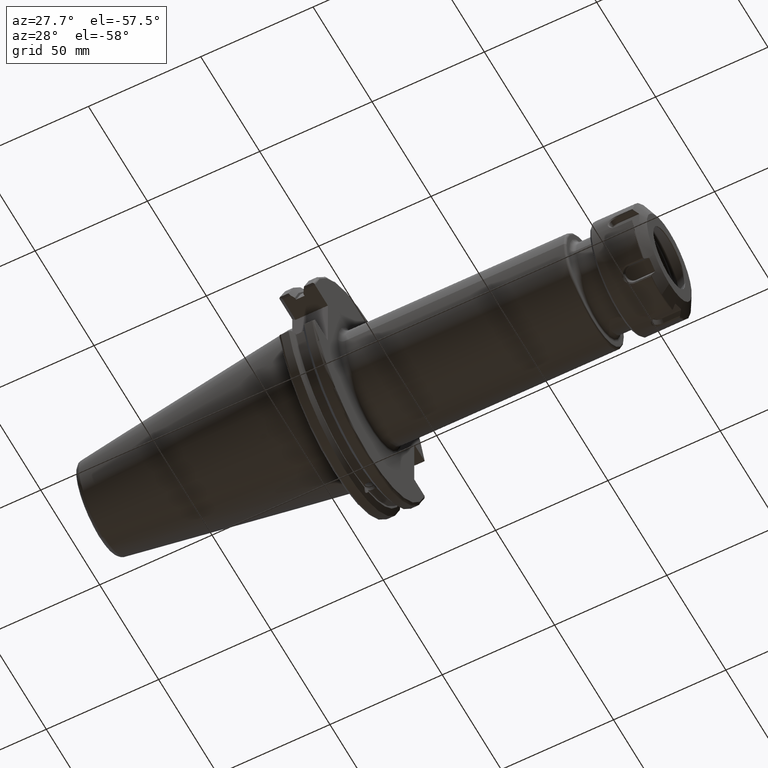
[diagram: clean part render]
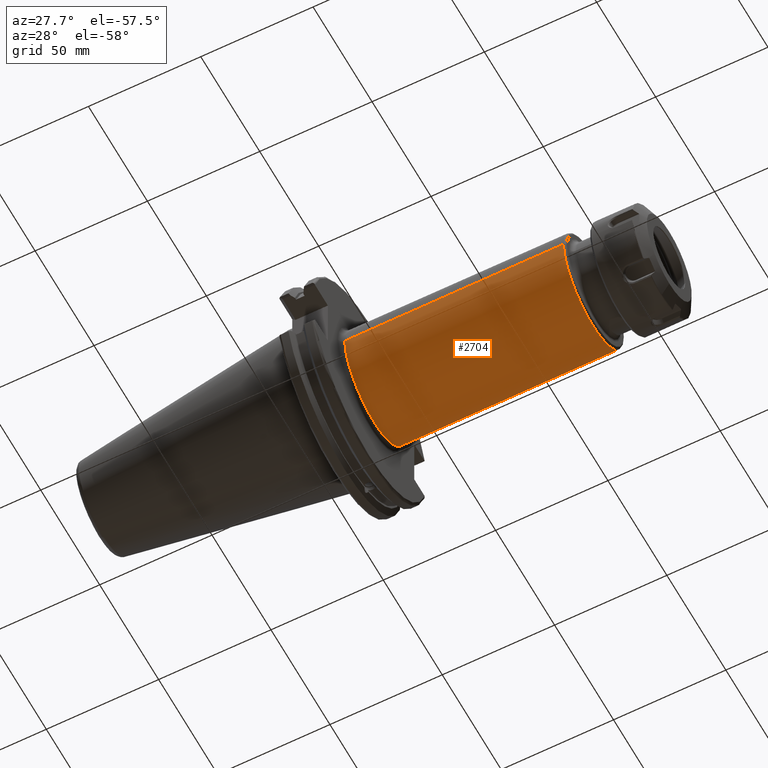
[diagram: same view with one face highlighted and labeled with its STEP entity id]
A machine part, auxiliary view. The second image highlights one B-rep face of the part: STEP entity #2704.
In plain terms, the highlighted cylindrical surface (partial cylindrical patch) has radius 24.9936 mm, axis along (1, 0, 0).
Its self-contained STEP definition (entity closure, byte-faithful):
#375=CARTESIAN_POINT('',(4.662E0,0.E0,0.E0));
#376=DIRECTION('',(-1.E0,0.E0,0.E0));
#377=DIRECTION('',(0.E0,1.E0,0.E0));
#378=AXIS2_PLACEMENT_3D('',#375,#376,#377);
#380=DIRECTION('',(-1.E0,0.E0,6.893169706803E-12));
#381=VECTOR('',#380,3.833E0);
#382=CARTESIAN_POINT('',(4.662E0,9.84E-1,-4.090723015063E-12));
#383=LINE('',#382,#381);
#384=CARTESIAN_POINT('',(8.29E-1,0.E0,0.E0));
#385=DIRECTION('',(1.E0,0.E0,0.E0));
#386=DIRECTION('',(0.E0,-1.E0,0.E0));
#387=AXIS2_PLACEMENT_3D('',#384,#385,#386);
#389=DIRECTION('',(-1.E0,0.E0,-6.893226465497E-12));
#390=VECTOR('',#389,3.833E0);
#391=CARTESIAN_POINT('',(4.662E0,-9.84E-1,4.090912179550E-12));
#392=LINE('',#391,#390);
#2119=CARTESIAN_POINT('',(8.29E-1,-9.84E-1,0.E0));
#2120=CARTESIAN_POINT('',(8.29E-1,9.84E-1,0.E0));
#2121=VERTEX_POINT('',#2119);
#2122=VERTEX_POINT('',#2120);
#2123=CARTESIAN_POINT('',(4.662E0,9.84E-1,0.E0));
#2124=CARTESIAN_POINT('',(4.662E0,-9.84E-1,0.E0));
#2125=VERTEX_POINT('',#2123);
#2126=VERTEX_POINT('',#2124);
#2690=CARTESIAN_POINT('',(0.E0,0.E0,0.E0));
#2691=DIRECTION('',(1.E0,0.E0,0.E0));
#2692=DIRECTION('',(0.E0,-1.E0,0.E0));
#2693=AXIS2_PLACEMENT_3D('',#2690,#2691,#2692);
#2694=CYLINDRICAL_SURFACE('',#2693,9.84E-1);
#2695=ORIENTED_EDGE('',*,*,#2680,.F.);
#2697=ORIENTED_EDGE('',*,*,#2696,.T.);
#2699=ORIENTED_EDGE('',*,*,#2698,.F.);
#2701=ORIENTED_EDGE('',*,*,#2700,.F.);
#2702=EDGE_LOOP('',(#2695,#2697,#2699,#2701));
#2703=FACE_OUTER_BOUND('',#2702,.F.);
#2704=ADVANCED_FACE('',(#2703),#2694,.T.);
#379=CIRCLE('',#378,9.84E-1);
#388=CIRCLE('',#387,9.84E-1);
#2680=EDGE_CURVE('',#2125,#2126,#379,.T.);
#2696=EDGE_CURVE('',#2125,#2122,#383,.T.);
#2698=EDGE_CURVE('',#2121,#2122,#388,.T.);
#2700=EDGE_CURVE('',#2126,#2121,#392,.T.);